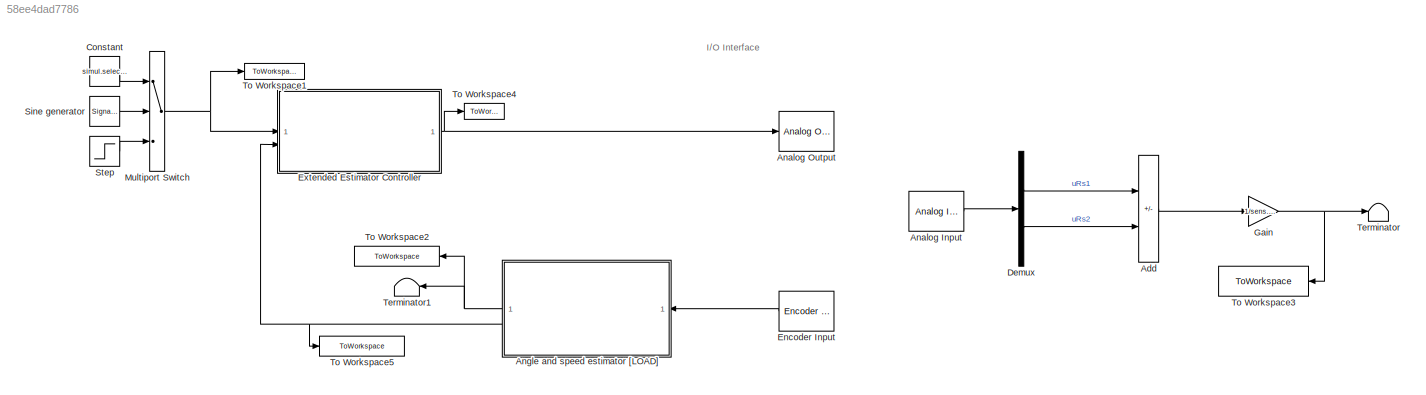
MODEL slx_58ee4dad7786
KIND model
CONFIG AbsTol = auto
CONFIG EnableMultiTasking = off
CONFIG FixedStep = 0.001
CONFIG MaxStep = auto
CONFIG MinStep = auto
CONFIG RelTol = 1e-3
CONFIG SampleTimeConstraint = Unconstrained
CONFIG SolverName = FixedStepAuto
CONFIG StartTime = 0.0
CONFIG StopTime = 20
BLOCK [Sum] Add
  IconShape = rectangular
  Inputs = +-
BLOCK [Reference] Analog Input  REF=sldrtlib/Analog Input
  AttributesFormatString = National Instruments\nPCI-6221 [auto]
  SourceBlock = sldrtlib/Analog Input
  SourceType = Simulink Desktop Real-Time Analog Input
BLOCK [Reference] Analog Output  REF=sldrtlib/Analog Output
  AttributesFormatString = National Instruments\nPCI-6221 [auto]
  SourceBlock = sldrtlib/Analog Output
  SourceType = Simulink Desktop Real-Time Analog Output
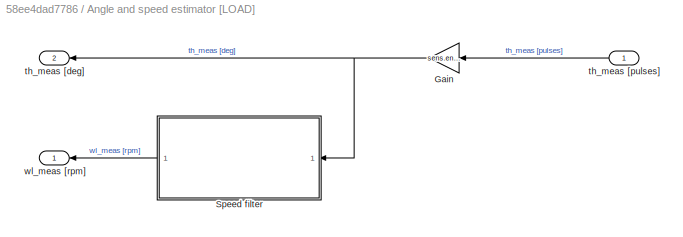
BLOCK [SubSystem] Angle and speed estimator [LOAD]
  NameLocation = top
BLOCK [Gain] Angle and speed estimator [LOAD]/Gain
  Gain = sens.enc.pulse2deg
  NameLocation = top
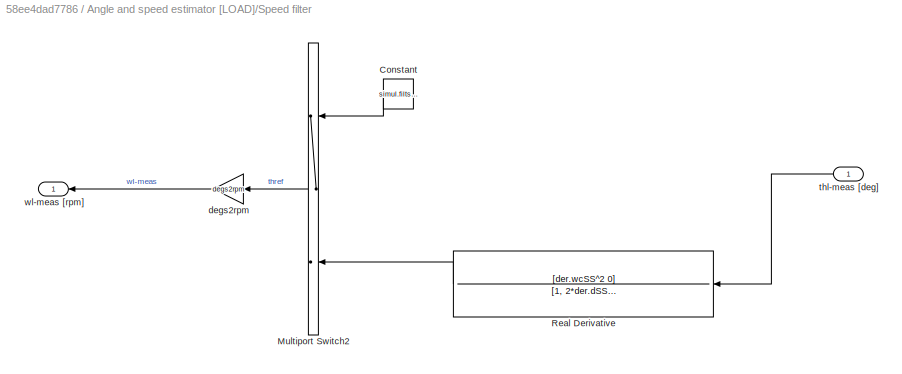
BLOCK [SubSystem] Angle and speed estimator [LOAD]/Speed filter
  NameLocation = top
BLOCK [Constant] Angle and speed estimator [LOAD]/Speed filter/Constant
  NameLocation = top
  Value = simul.filtselect
BLOCK [MultiPortSwitch] Angle and speed estimator [LOAD]/Speed filter/Multiport Switch2
  InputSameDT = off
  Inputs = 2
  NameLocation = top
  SaturateOnIntegerOverflow = off
BLOCK [TransferFcn] Angle and speed estimator [LOAD]/Speed filter/Real Derivative
  Denominator = [1, 2*der.dSS*der.wcSS, der.wcSS^2]
  NameLocation = top
  Numerator = [der.wcSS^2 0]
BLOCK [Gain] Angle and speed estimator [LOAD]/Speed filter/degs2rpm
  Gain = degs2rpm
BLOCK [Inport] Angle and speed estimator [LOAD]/Speed filter/thl-meas [deg]
BLOCK [Outport] Angle and speed estimator [LOAD]/Speed filter/wl-meas [rpm]
BLOCK [Outport] Angle and speed estimator [LOAD]/th_meas [deg]
  Port = 2
BLOCK [Inport] Angle and speed estimator [LOAD]/th_meas [pulses]
  NameLocation = top
BLOCK [Outport] Angle and speed estimator [LOAD]/wl_meas [rpm]
BLOCK [Constant] Constant
  Value = simul.select3
BLOCK [Demux] Demux
  Outputs = 2
BLOCK [Reference] Encoder Input  REF=sldrtlib/Encoder Input
  AttributesFormatString = National Instruments\nPCI-6221 [auto]
  NameLocation = top
  SourceBlock = sldrtlib/Encoder Input
  SourceType = Simulink Desktop Real-Time Encoder Input
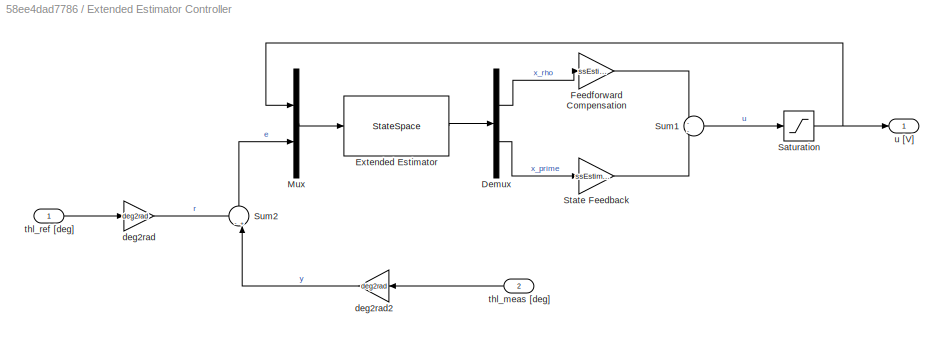
BLOCK [SubSystem] Extended Estimator Controller
BLOCK [Demux] Extended Estimator Controller/Demux
  Outputs = 2
BLOCK [StateSpace] Extended Estimator Controller/Extended Estimator
  A = ssEstimator.Ae - ssEstimator.Le*ssEstimator.Ce
  B = [ssEstimator.Be, ssEstimator.Le]
  C = eye(5)
  D = zeros(5,2)
  InitialCondition = 0
BLOCK [Gain] Extended Estimator Controller/Feedforward Compensation
  Gain = ssEstimator.C_rho
  Multiplication = Matrix(K*u)
BLOCK [Mux] Extended Estimator Controller/Mux
  DisplayOption = bar
  Inputs = 2
BLOCK [Saturate] Extended Estimator Controller/Saturation
  LowerLimit = -10
  UpperLimit = 10
BLOCK [Gain] Extended Estimator Controller/State Feedback
  Gain = ssEstimator.K
  Multiplication = Matrix(K*u)
BLOCK [Sum] Extended Estimator Controller/Sum1
  Inputs = -|-
BLOCK [Sum] Extended Estimator Controller/Sum2
  Inputs = -+|
  NameLocation = right
BLOCK [Gain] Extended Estimator Controller/deg2rad
  Gain = deg2rad
BLOCK [Gain] Extended Estimator Controller/deg2rad2
  Gain = deg2rad
  NameLocation = top
BLOCK [Inport] Extended Estimator Controller/thl_meas [deg]
  NameLocation = top
  Port = 2
BLOCK [Inport] Extended Estimator Controller/thl_ref [deg]
BLOCK [Outport] Extended Estimator Controller/u [V]
BLOCK [Gain] Gain
  Gain = 1/sens.curr.Rs
BLOCK [MultiPortSwitch] Multiport Switch
  InputSameDT = off
  Inputs = 2
  SaturateOnIntegerOverflow = off
BLOCK [SignalGenerator] Sine generator
  Amplitude = ssError.amp
  Frequency = ssError.freq
  Units = rad/sec
BLOCK [Step] Step
  After = ssError.amp
  SampleTime = Ts
BLOCK [Terminator] Terminator
BLOCK [Terminator] Terminator1
  NameLocation = top
BLOCK [ToWorkspace] To Workspace1
  FixptAsFi = on
  MaxDataPoints = inf
  SampleTime = Ts
  SaveFormat = Structure With Time
  VariableName = thref
BLOCK [ToWorkspace] To Workspace2
  FixptAsFi = on
  MaxDataPoints = inf
  NameLocation = top
  SampleTime = Ts
  SaveFormat = Structure With Time
  VariableName = wl_meas
BLOCK [ToWorkspace] To Workspace3
  FixptAsFi = on
  MaxDataPoints = inf
  NameLocation = top
  SampleTime = Ts
  SaveFormat = Structure With Time
  VariableName = ia
BLOCK [ToWorkspace] To Workspace4
  FixptAsFi = on
  MaxDataPoints = inf
  SampleTime = Ts
  SaveFormat = Structure With Time
  VariableName = u
BLOCK [ToWorkspace] To Workspace5
  FixptAsFi = on
  MaxDataPoints = inf
  SampleTime = Ts
  SaveFormat = Structure With Time
  VariableName = thl_meas
ANNOTATION (root): I/O Interface
LINE Add:1 -> Gain:1
LINE Analog Input:1 -> Demux:1
NET Angle and speed estimator [LOAD]/Gain:1 -> Angle and speed estimator [LOAD]/Speed filter:1, Angle and speed estimator [LOAD]/th_meas [deg]:1
LINE Angle and speed estimator [LOAD]/Speed filter/Constant:1 -> Angle and speed estimator [LOAD]/Speed filter/Multiport Switch2:1
LINE Angle and speed estimator [LOAD]/Speed filter/Multiport Switch2:1 -> Angle and speed estimator [LOAD]/Speed filter/degs2rpm:1
LINE Angle and speed estimator [LOAD]/Speed filter/Real Derivative:1 -> Angle and speed estimator [LOAD]/Speed filter/Multiport Switch2:3
LINE Angle and speed estimator [LOAD]/Speed filter/degs2rpm:1 -> Angle and speed estimator [LOAD]/Speed filter/wl-meas [rpm]:1
LINE Angle and speed estimator [LOAD]/Speed filter/thl-meas [deg]:1 -> Angle and speed estimator [LOAD]/Speed filter/Real Derivative:1
LINE Angle and speed estimator [LOAD]/Speed filter:1 -> Angle and speed estimator [LOAD]/wl_meas [rpm]:1
LINE Angle and speed estimator [LOAD]/th_meas [pulses]:1 -> Angle and speed estimator [LOAD]/Gain:1
NET Angle and speed estimator [LOAD]:1 -> Terminator1:1, To Workspace2:1
NET Angle and speed estimator [LOAD]:2 -> Extended Estimator Controller:2, To Workspace5:1
LINE Constant:1 -> Multiport Switch:1
LINE Demux:1 -> Add:1
LINE Demux:2 -> Add:2
LINE Encoder Input:1 -> Angle and speed estimator [LOAD]:1
LINE Extended Estimator Controller/Demux:1 -> Extended Estimator Controller/Feedforward Compensation:1
LINE Extended Estimator Controller/Demux:2 -> Extended Estimator Controller/State Feedback:1
LINE Extended Estimator Controller/Extended Estimator:1 -> Extended Estimator Controller/Demux:1
LINE Extended Estimator Controller/Feedforward Compensation:1 -> Extended Estimator Controller/Sum1:1
LINE Extended Estimator Controller/Mux:1 -> Extended Estimator Controller/Extended Estimator:1
NET Extended Estimator Controller/Saturation:1 -> Extended Estimator Controller/Mux:1, Extended Estimator Controller/u [V]:1
LINE Extended Estimator Controller/State Feedback:1 -> Extended Estimator Controller/Sum1:2
LINE Extended Estimator Controller/Sum1:1 -> Extended Estimator Controller/Saturation:1
LINE Extended Estimator Controller/Sum2:1 -> Extended Estimator Controller/Mux:2
LINE Extended Estimator Controller/deg2rad2:1 -> Extended Estimator Controller/Sum2:2
LINE Extended Estimator Controller/deg2rad:1 -> Extended Estimator Controller/Sum2:1
LINE Extended Estimator Controller/thl_meas [deg]:1 -> Extended Estimator Controller/deg2rad2:1
LINE Extended Estimator Controller/thl_ref [deg]:1 -> Extended Estimator Controller/deg2rad:1
NET Extended Estimator Controller:1 -> Analog Output:1, To Workspace4:1
NET Gain:1 -> Terminator:1, To Workspace3:1
NET Multiport Switch:1 -> Extended Estimator Controller:1, To Workspace1:1
LINE Sine generator:1 -> Multiport Switch:2
LINE Step:1 -> Multiport Switch:3
note: NET lines group one-source signal fan-out (src -> all destinations, sorted); 1:1 wires keep LINE
